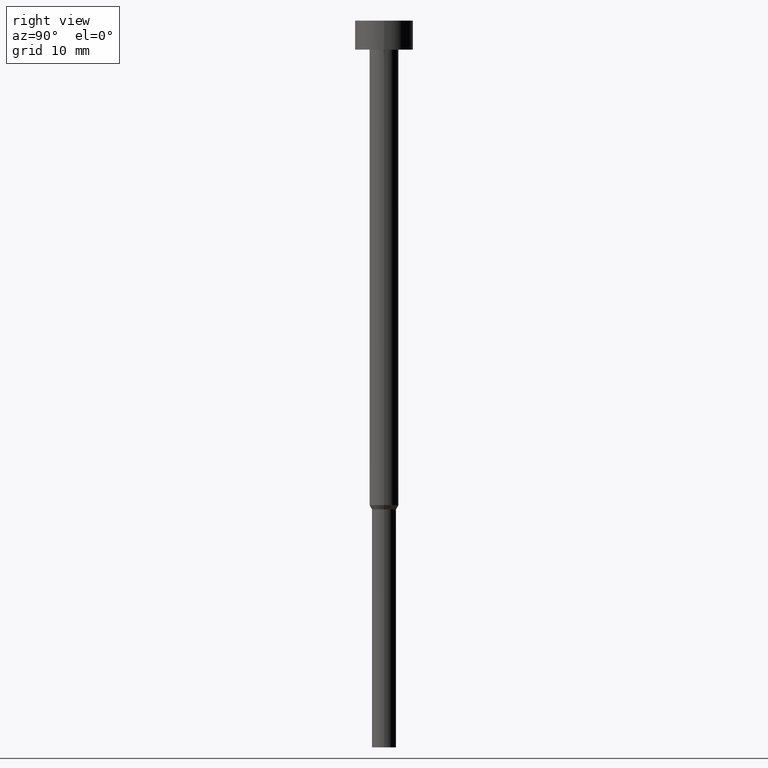
[diagram: clean part render]
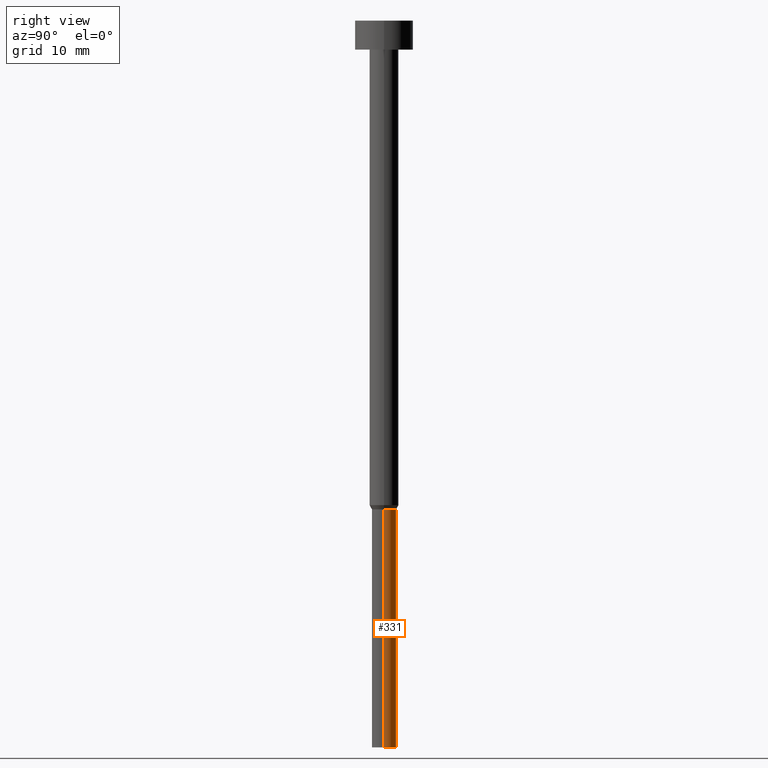
[diagram: same view with one face highlighted and labeled with its STEP entity id]
A machine part, right view. The second image highlights one B-rep face of the part: STEP entity #331.
In plain terms, the highlighted cylindrical surface (edge-blend (fillet) strip) has radius 1.25 mm, axis along (-0, -0, 1).
Its self-contained STEP definition (entity closure, byte-faithful):
#7 = EDGE_CURVE ( 'NONE', #230, #287, #20, .T. ) ;
#8 = LINE ( 'NONE', #164, #312 ) ;
#20 = CIRCLE ( 'NONE', #35, 1.250000000000000000 ) ;
#35 = AXIS2_PLACEMENT_3D ( 'NONE', #174, #43, #177 ) ;
#43 = DIRECTION ( 'NONE',  ( -0.000000000000000000, -0.000000000000000000, 1.000000000000000000 ) ) ;
#48 = CARTESIAN_POINT ( 'NONE',  ( -1.250000000000000000, 1.530808498934191571E-16, 0.000000000000000000 ) ) ;
#51 = EDGE_LOOP ( 'NONE', ( #237, #234, #303, #194 ) ) ;
#59 = CARTESIAN_POINT ( 'NONE',  ( -1.250000000000000000, 1.530808498934191571E-16, -50.43301270189221697 ) ) ;
#70 = CIRCLE ( 'NONE', #308, 1.250000000000000000 ) ;
#73 = CARTESIAN_POINT ( 'NONE',  ( -1.250000000000000000, 1.530808498934191571E-16, -75.00000000000000000 ) ) ;
#91 = VECTOR ( 'NONE', #265, 1000.000000000000000 ) ;
#103 = AXIS2_PLACEMENT_3D ( 'NONE', #220, #257, #248 ) ;
#133 = VERTEX_POINT ( 'NONE', #59 ) ;
#135 = FACE_OUTER_BOUND ( 'NONE', #51, .T. ) ;
#156 = CARTESIAN_POINT ( 'NONE',  ( 1.250000000000000000, 0.000000000000000000, -50.43301270189221697 ) ) ;
#162 = CYLINDRICAL_SURFACE ( 'NONE', #103, 1.250000000000000000 ) ;
#164 = CARTESIAN_POINT ( 'NONE',  ( 1.250000000000000000, 0.000000000000000000, 0.000000000000000000 ) ) ;
#174 = CARTESIAN_POINT ( 'NONE',  ( 0.000000000000000000, 0.000000000000000000, -75.00000000000000000 ) ) ;
#177 = DIRECTION ( 'NONE',  ( 1.000000000000000000, 0.000000000000000000, 0.000000000000000000 ) ) ;
#192 = VERTEX_POINT ( 'NONE', #156 ) ;
#194 = ORIENTED_EDGE ( 'NONE', *, *, #344, .F. ) ;
#207 = EDGE_CURVE ( 'NONE', #287, #133, #239, .T. ) ;
#215 = DIRECTION ( 'NONE',  ( 1.000000000000000000, 0.000000000000000000, 0.000000000000000000 ) ) ;
#220 = CARTESIAN_POINT ( 'NONE',  ( 0.000000000000000000, 0.000000000000000000, 0.000000000000000000 ) ) ;
#230 = VERTEX_POINT ( 'NONE', #240 ) ;
#234 = ORIENTED_EDGE ( 'NONE', *, *, #207, .T. ) ;
#237 = ORIENTED_EDGE ( 'NONE', *, *, #7, .T. ) ;
#239 = LINE ( 'NONE', #48, #91 ) ;
#240 = CARTESIAN_POINT ( 'NONE',  ( 1.250000000000000000, 0.000000000000000000, -75.00000000000000000 ) ) ;
#246 = CARTESIAN_POINT ( 'NONE',  ( 0.000000000000000000, 0.000000000000000000, -50.43301270189221697 ) ) ;
#248 = DIRECTION ( 'NONE',  ( 1.000000000000000000, 0.000000000000000000, 0.000000000000000000 ) ) ;
#257 = DIRECTION ( 'NONE',  ( -0.000000000000000000, -0.000000000000000000, 1.000000000000000000 ) ) ;
#265 = DIRECTION ( 'NONE',  ( -0.000000000000000000, -0.000000000000000000, 1.000000000000000000 ) ) ;
#287 = VERTEX_POINT ( 'NONE', #73 ) ;
#303 = ORIENTED_EDGE ( 'NONE', *, *, #350, .F. ) ;
#308 = AXIS2_PLACEMENT_3D ( 'NONE', #246, #333, #215 ) ;
#312 = VECTOR ( 'NONE', #330, 1000.000000000000000 ) ;
#330 = DIRECTION ( 'NONE',  ( -0.000000000000000000, -0.000000000000000000, 1.000000000000000000 ) ) ;
#331 = ADVANCED_FACE ( 'NONE', ( #135 ), #162, .T. ) ;
#333 = DIRECTION ( 'NONE',  ( -0.000000000000000000, -0.000000000000000000, 1.000000000000000000 ) ) ;
#344 = EDGE_CURVE ( 'NONE', #230, #192, #8, .T. ) ;
#350 = EDGE_CURVE ( 'NONE', #192, #133, #70, .T. ) ;